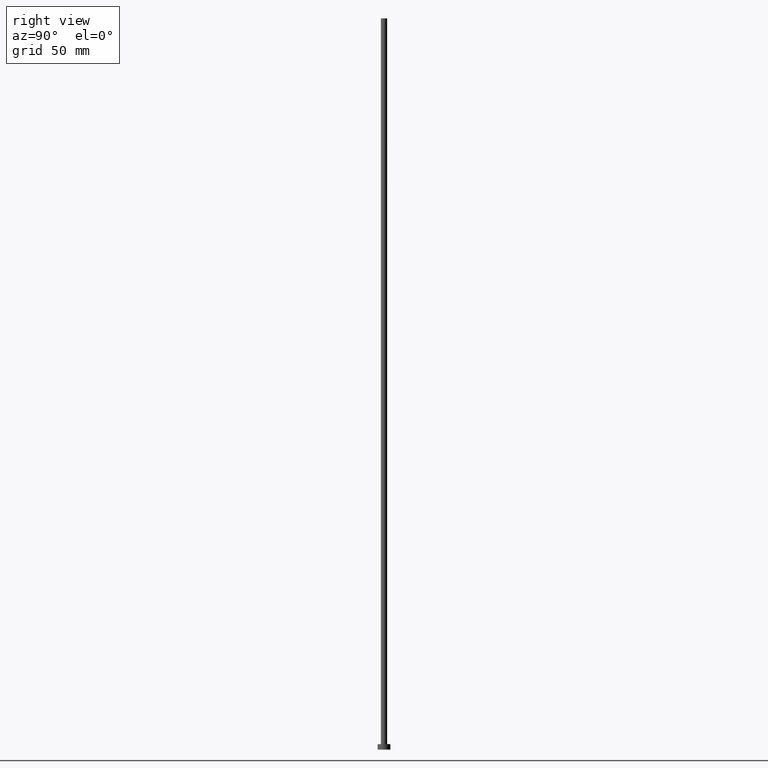
[diagram: clean part render]
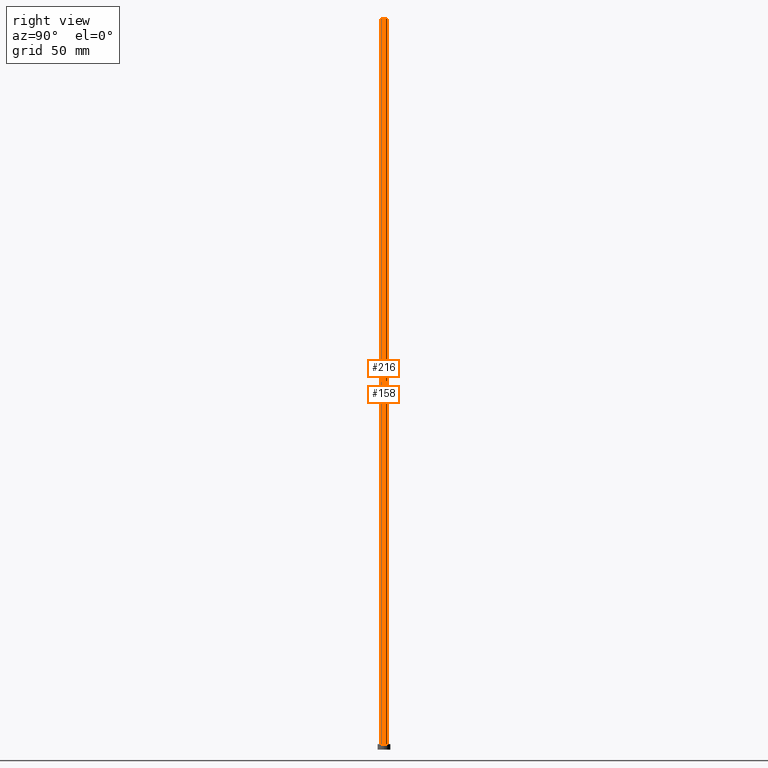
[diagram: same view with one multi-face feature highlighted, each face labeled with its STEP entity id]
A machine part, right view. The highlighted faces form ONE feature: a constant-radius fillet chain: 2 tangent blend faces with common blend radius 1.75 mm. The faces share edges in the B-rep.
Their STEP definitions:
[1] entity #158 (Cylinder):
#8 = VECTOR ( 'NONE', #111, 1000.000000000000000 ) ;
#10 = DIRECTION ( 'NONE',  ( 0.000000000000000000, 0.000000000000000000, 1.000000000000000000 ) ) ;
#19 = VERTEX_POINT ( 'NONE', #84 ) ;
#29 = CARTESIAN_POINT ( 'NONE',  ( 0.000000000000000000, 0.000000000000000000, 3.000000000000000000 ) ) ;
#39 = ORIENTED_EDGE ( 'NONE', *, *, #119, .T. ) ;
#43 = CIRCLE ( 'NONE', #149, 1.750000000000000000 ) ;
#51 = CYLINDRICAL_SURFACE ( 'NONE', #76, 1.750000000000000000 ) ;
#64 = VECTOR ( 'NONE', #207, 1000.000000000000000 ) ;
#65 = ORIENTED_EDGE ( 'NONE', *, *, #127, .T. ) ;
#68 = EDGE_CURVE ( 'NONE', #136, #177, #205, .T. ) ;
#69 = LINE ( 'NONE', #212, #8 ) ;
#70 = DIRECTION ( 'NONE',  ( 1.000000000000000000, 0.000000000000000000, 0.000000000000000000 ) ) ;
#76 = AXIS2_PLACEMENT_3D ( 'NONE', #247, #195, #156 ) ;
#84 = CARTESIAN_POINT ( 'NONE',  ( 1.750000000000000000, 2.143131898507868297E-16, 400.0000000000000000 ) ) ;
#86 = DIRECTION ( 'NONE',  ( 1.000000000000000000, 0.000000000000000000, 0.000000000000000000 ) ) ;
#97 = CIRCLE ( 'NONE', #131, 1.750000000000000000 ) ;
#111 = DIRECTION ( 'NONE',  ( -0.000000000000000000, -0.000000000000000000, -1.000000000000000000 ) ) ;
#115 = ORIENTED_EDGE ( 'NONE', *, *, #68, .F. ) ;
#119 = EDGE_CURVE ( 'NONE', #141, #177, #97, .T. ) ;
#125 = CARTESIAN_POINT ( 'NONE',  ( -1.750000000000000000, 0.000000000000000000, 400.0000000000000000 ) ) ;
#127 = EDGE_CURVE ( 'NONE', #19, #141, #69, .T. ) ;
#131 = AXIS2_PLACEMENT_3D ( 'NONE', #29, #10, #86 ) ;
#133 = CARTESIAN_POINT ( 'NONE',  ( -1.750000000000000000, 0.000000000000000000, 3.000000000000000000 ) ) ;
#136 = VERTEX_POINT ( 'NONE', #175 ) ;
#141 = VERTEX_POINT ( 'NONE', #192 ) ;
#144 = EDGE_CURVE ( 'NONE', #19, #136, #43, .T. ) ;
#149 = AXIS2_PLACEMENT_3D ( 'NONE', #249, #155, #70 ) ;
#155 = DIRECTION ( 'NONE',  ( 0.000000000000000000, 0.000000000000000000, 1.000000000000000000 ) ) ;
#156 = DIRECTION ( 'NONE',  ( -1.000000000000000000, 0.000000000000000000, 0.000000000000000000 ) ) ;
#158 = ADVANCED_FACE ( 'NONE', ( #210 ), #51, .T. ) ;
#175 = CARTESIAN_POINT ( 'NONE',  ( -1.750000000000000000, 0.000000000000000000, 400.0000000000000000 ) ) ;
#177 = VERTEX_POINT ( 'NONE', #133 ) ;
#192 = CARTESIAN_POINT ( 'NONE',  ( 1.750000000000000000, 2.143131898507868297E-16, 3.000000000000000000 ) ) ;
#195 = DIRECTION ( 'NONE',  ( -0.000000000000000000, -0.000000000000000000, -1.000000000000000000 ) ) ;
#205 = LINE ( 'NONE', #125, #64 ) ;
#207 = DIRECTION ( 'NONE',  ( -0.000000000000000000, -0.000000000000000000, -1.000000000000000000 ) ) ;
#210 = FACE_OUTER_BOUND ( 'NONE', #237, .T. ) ;
#212 = CARTESIAN_POINT ( 'NONE',  ( 1.750000000000000000, 2.143131898507868297E-16, 400.0000000000000000 ) ) ;
#231 = ORIENTED_EDGE ( 'NONE', *, *, #144, .F. ) ;
#237 = EDGE_LOOP ( 'NONE', ( #231, #65, #39, #115 ) ) ;
#247 = CARTESIAN_POINT ( 'NONE',  ( 0.000000000000000000, 0.000000000000000000, 400.0000000000000000 ) ) ;
#249 = CARTESIAN_POINT ( 'NONE',  ( 0.000000000000000000, 0.000000000000000000, 400.0000000000000000 ) ) ;
[2] entity #216 (Cylinder):
#1 = DIRECTION ( 'NONE',  ( 1.000000000000000000, 0.000000000000000000, 0.000000000000000000 ) ) ;
#5 = ORIENTED_EDGE ( 'NONE', *, *, #87, .T. ) ;
#8 = VECTOR ( 'NONE', #111, 1000.000000000000000 ) ;
#11 = DIRECTION ( 'NONE',  ( -1.000000000000000000, 0.000000000000000000, 0.000000000000000000 ) ) ;
#19 = VERTEX_POINT ( 'NONE', #84 ) ;
#35 = CYLINDRICAL_SURFACE ( 'NONE', #239, 1.750000000000000000 ) ;
#61 = ORIENTED_EDGE ( 'NONE', *, *, #68, .T. ) ;
#64 = VECTOR ( 'NONE', #207, 1000.000000000000000 ) ;
#68 = EDGE_CURVE ( 'NONE', #136, #177, #205, .T. ) ;
#69 = LINE ( 'NONE', #212, #8 ) ;
#72 = FACE_OUTER_BOUND ( 'NONE', #223, .T. ) ;
#79 = CARTESIAN_POINT ( 'NONE',  ( 0.000000000000000000, 0.000000000000000000, 400.0000000000000000 ) ) ;
#84 = CARTESIAN_POINT ( 'NONE',  ( 1.750000000000000000, 2.143131898507868297E-16, 400.0000000000000000 ) ) ;
#87 = EDGE_CURVE ( 'NONE', #177, #141, #168, .T. ) ;
#91 = CARTESIAN_POINT ( 'NONE',  ( 0.000000000000000000, 0.000000000000000000, 400.0000000000000000 ) ) ;
#92 = EDGE_CURVE ( 'NONE', #136, #19, #116, .T. ) ;
#95 = ORIENTED_EDGE ( 'NONE', *, *, #92, .F. ) ;
#101 = AXIS2_PLACEMENT_3D ( 'NONE', #183, #169, #1 ) ;
#102 = ORIENTED_EDGE ( 'NONE', *, *, #127, .F. ) ;
#111 = DIRECTION ( 'NONE',  ( -0.000000000000000000, -0.000000000000000000, -1.000000000000000000 ) ) ;
#116 = CIRCLE ( 'NONE', #213, 1.750000000000000000 ) ;
#125 = CARTESIAN_POINT ( 'NONE',  ( -1.750000000000000000, 0.000000000000000000, 400.0000000000000000 ) ) ;
#127 = EDGE_CURVE ( 'NONE', #19, #141, #69, .T. ) ;
#133 = CARTESIAN_POINT ( 'NONE',  ( -1.750000000000000000, 0.000000000000000000, 3.000000000000000000 ) ) ;
#136 = VERTEX_POINT ( 'NONE', #175 ) ;
#141 = VERTEX_POINT ( 'NONE', #192 ) ;
#168 = CIRCLE ( 'NONE', #101, 1.750000000000000000 ) ;
#169 = DIRECTION ( 'NONE',  ( 0.000000000000000000, 0.000000000000000000, 1.000000000000000000 ) ) ;
#175 = CARTESIAN_POINT ( 'NONE',  ( -1.750000000000000000, 0.000000000000000000, 400.0000000000000000 ) ) ;
#177 = VERTEX_POINT ( 'NONE', #133 ) ;
#183 = CARTESIAN_POINT ( 'NONE',  ( 0.000000000000000000, 0.000000000000000000, 3.000000000000000000 ) ) ;
#186 = DIRECTION ( 'NONE',  ( 1.000000000000000000, 0.000000000000000000, 0.000000000000000000 ) ) ;
#192 = CARTESIAN_POINT ( 'NONE',  ( 1.750000000000000000, 2.143131898507868297E-16, 3.000000000000000000 ) ) ;
#205 = LINE ( 'NONE', #125, #64 ) ;
#207 = DIRECTION ( 'NONE',  ( -0.000000000000000000, -0.000000000000000000, -1.000000000000000000 ) ) ;
#212 = CARTESIAN_POINT ( 'NONE',  ( 1.750000000000000000, 2.143131898507868297E-16, 400.0000000000000000 ) ) ;
#213 = AXIS2_PLACEMENT_3D ( 'NONE', #79, #227, #186 ) ;
#215 = DIRECTION ( 'NONE',  ( -0.000000000000000000, -0.000000000000000000, -1.000000000000000000 ) ) ;
#216 = ADVANCED_FACE ( 'NONE', ( #72 ), #35, .T. ) ;
#223 = EDGE_LOOP ( 'NONE', ( #102, #95, #61, #5 ) ) ;
#227 = DIRECTION ( 'NONE',  ( 0.000000000000000000, 0.000000000000000000, 1.000000000000000000 ) ) ;
#239 = AXIS2_PLACEMENT_3D ( 'NONE', #91, #215, #11 ) ;